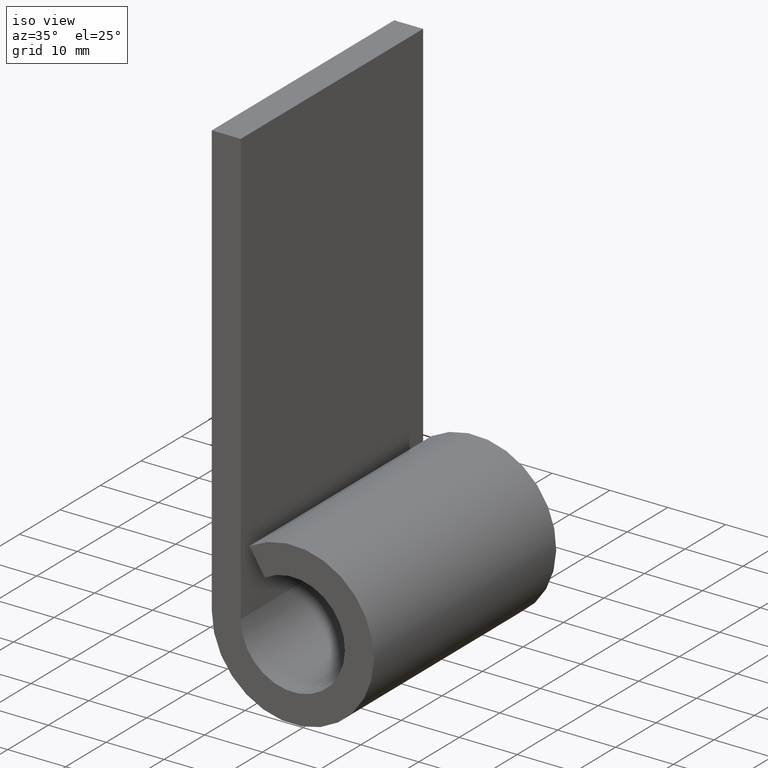
[diagram: clean part render]
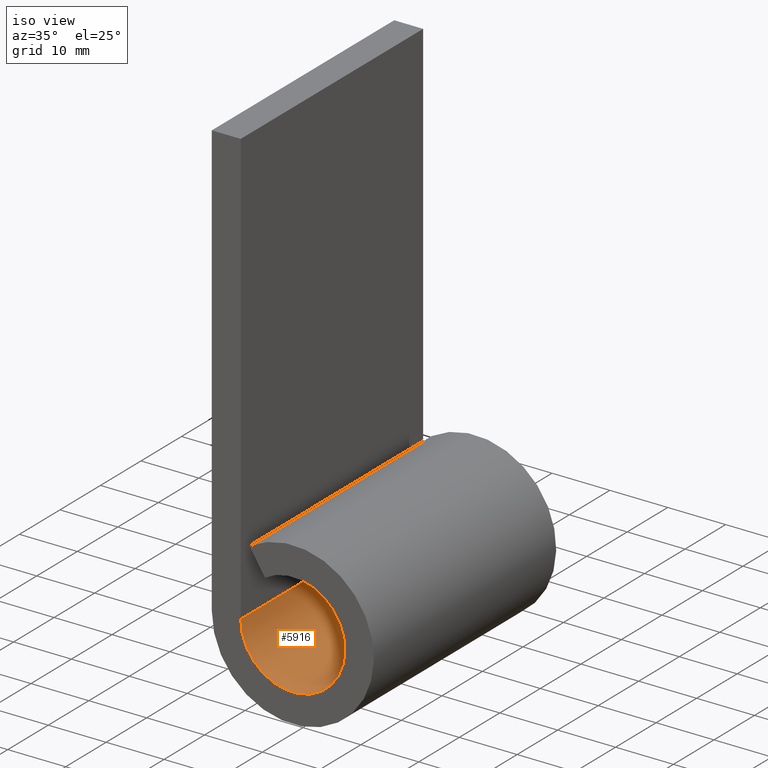
[diagram: same view with one face highlighted and labeled with its STEP entity id]
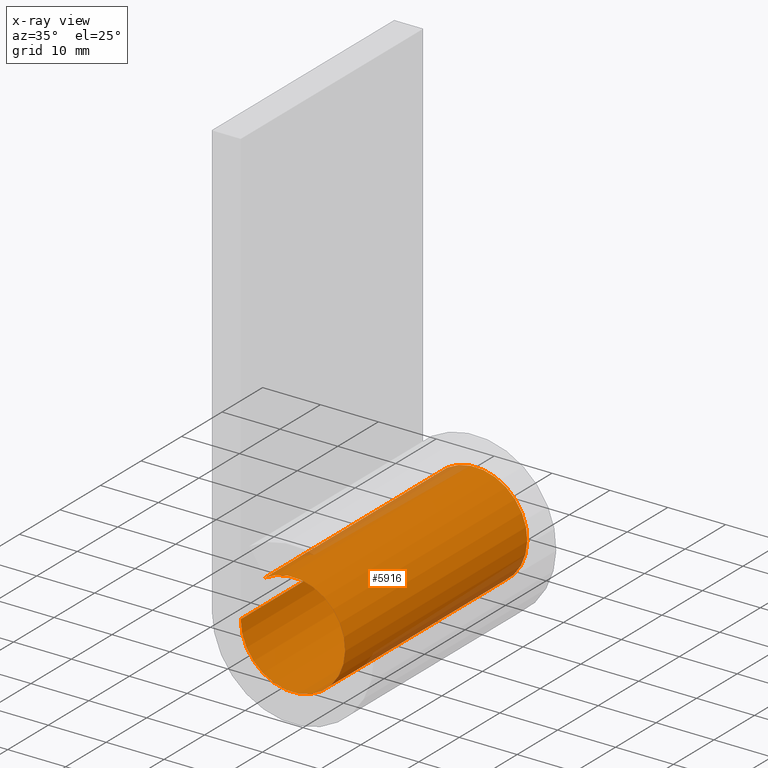
[diagram: x-ray of the same camera — body ghosted, the highlighted face saturated]
A machine part, iso view. The second image highlights one B-rep face of the part: STEP entity #5916.
The next image is the same camera in x-ray: the body ghosted, the highlighted face saturated — about 8% of this face is hidden behind the body in this view.
In plain terms, the highlighted cylindrical surface (partial cylindrical patch) has radius 9 mm, axis along (-0, -1, -0).
Its self-contained STEP definition (entity closure, byte-faithful):
#755 = AXIS2_PLACEMENT_3D ( 'NONE', #1871, #8116, #2788 ) ;
#772 = VECTOR ( 'NONE', #10195, 1000.000000000000000 ) ;
#959 = AXIS2_PLACEMENT_3D ( 'NONE', #6820, #6085, #8614 ) ;
#1375 = AXIS2_PLACEMENT_3D ( 'NONE', #6094, #7732, #3270 ) ;
#1871 = CARTESIAN_POINT ( 'NONE',  ( 8.673617379884035472E-15, 22.50000000000000000, 0.000000000000000000 ) ) ;
#2368 = EDGE_CURVE ( 'NONE', #2906, #8665, #4473, .T. ) ;
#2667 = CARTESIAN_POINT ( 'NONE',  ( -4.821428571428570287, 22.50000000000000000, 7.599593839845144139 ) ) ;
#2788 = DIRECTION ( 'NONE',  ( 0.000000000000000000, 0.000000000000000000, -1.000000000000000000 ) ) ;
#2906 = VERTEX_POINT ( 'NONE', #2667 ) ;
#3270 = DIRECTION ( 'NONE',  ( 0.000000000000000000, 0.000000000000000000, -1.000000000000000000 ) ) ;
#3617 = ORIENTED_EDGE ( 'NONE', *, *, #9072, .F. ) ;
#3998 = CARTESIAN_POINT ( 'NONE',  ( -8.999999999999998224, 22.50000000000000000, 0.000000000000000000 ) ) ;
#4275 = ORIENTED_EDGE ( 'NONE', *, *, #10850, .T. ) ;
#4419 = CIRCLE ( 'NONE', #959, 9.000000000000005329 ) ;
#4454 = CARTESIAN_POINT ( 'NONE',  ( -8.999999999999998224, -22.50000000000000000, 0.000000000000000000 ) ) ;
#4473 = LINE ( 'NONE', #4977, #10982 ) ;
#4977 = CARTESIAN_POINT ( 'NONE',  ( -4.821428571428570287, 22.50000000000000000, 7.599593839845144139 ) ) ;
#5827 = CARTESIAN_POINT ( 'NONE',  ( -4.821428571428570287, -22.50000000000000000, 7.599593839845144139 ) ) ;
#5916 = ADVANCED_FACE ( 'NONE', ( #7908 ), #9712, .F. ) ;
#6085 = DIRECTION ( 'NONE',  ( -0.000000000000000000, -1.000000000000000000, 0.000000000000000000 ) ) ;
#6094 = CARTESIAN_POINT ( 'NONE',  ( 8.673617379884035472E-15, 22.50000000000000000, 0.000000000000000000 ) ) ;
#6331 = VERTEX_POINT ( 'NONE', #4454 ) ;
#6535 = ORIENTED_EDGE ( 'NONE', *, *, #2368, .F. ) ;
#6820 = CARTESIAN_POINT ( 'NONE',  ( 8.673617379884035472E-15, -22.50000000000000000, 0.000000000000000000 ) ) ;
#7196 = ORIENTED_EDGE ( 'NONE', *, *, #7507, .T. ) ;
#7439 = CARTESIAN_POINT ( 'NONE',  ( -8.999999999999998224, 22.50000000000000000, 0.000000000000000000 ) ) ;
#7507 = EDGE_CURVE ( 'NONE', #6331, #8665, #4419, .T. ) ;
#7732 = DIRECTION ( 'NONE',  ( -0.000000000000000000, -1.000000000000000000, -0.000000000000000000 ) ) ;
#7908 = FACE_OUTER_BOUND ( 'NONE', #9860, .T. ) ;
#8116 = DIRECTION ( 'NONE',  ( -0.000000000000000000, -1.000000000000000000, 0.000000000000000000 ) ) ;
#8614 = DIRECTION ( 'NONE',  ( 0.000000000000000000, 0.000000000000000000, -1.000000000000000000 ) ) ;
#8665 = VERTEX_POINT ( 'NONE', #5827 ) ;
#9072 = EDGE_CURVE ( 'NONE', #9133, #2906, #11156, .T. ) ;
#9133 = VERTEX_POINT ( 'NONE', #7439 ) ;
#9712 = CYLINDRICAL_SURFACE ( 'NONE', #1375, 9.000000000000005329 ) ;
#9860 = EDGE_LOOP ( 'NONE', ( #7196, #6535, #3617, #4275 ) ) ;
#10163 = LINE ( 'NONE', #3998, #772 ) ;
#10195 = DIRECTION ( 'NONE',  ( -0.000000000000000000, -1.000000000000000000, -0.000000000000000000 ) ) ;
#10850 = EDGE_CURVE ( 'NONE', #9133, #6331, #10163, .T. ) ;
#10982 = VECTOR ( 'NONE', #11099, 1000.000000000000000 ) ;
#11099 = DIRECTION ( 'NONE',  ( -0.000000000000000000, -1.000000000000000000, -0.000000000000000000 ) ) ;
#11156 = CIRCLE ( 'NONE', #755, 9.000000000000005329 ) ;